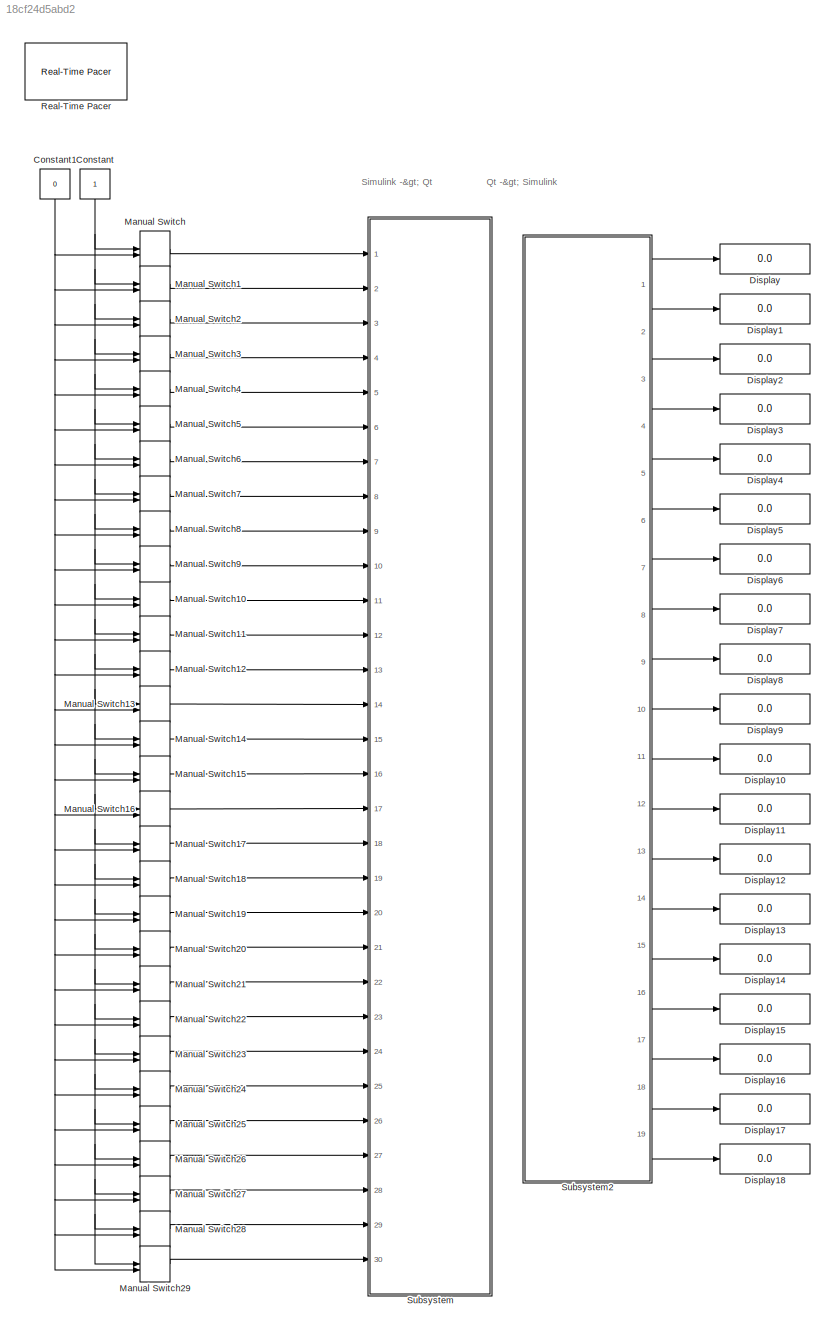
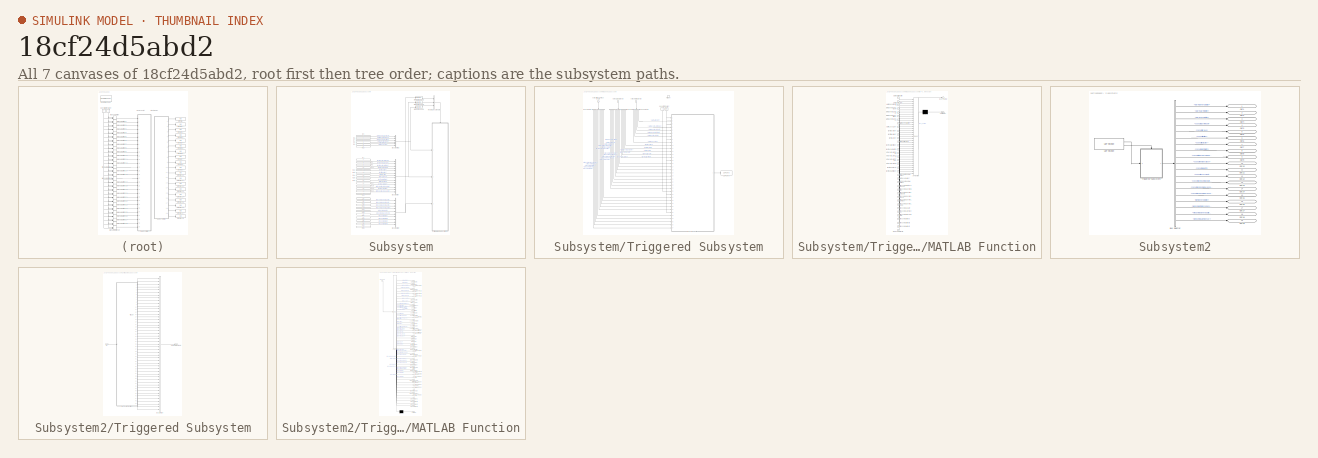
[diagram: thumbnail index - all 7 canvases of the model, root first then tree order]
MODEL slx_18cf24d5abd2
KIND model
CONFIG AbsTol = auto
CONFIG EnableMultiTasking = off
CONFIG FixedStep = auto
CONFIG MaxStep = auto
CONFIG MinStep = auto
CONFIG RelTol = 1e-3
CONFIG SampleTimeConstraint = Unconstrained
CONFIG Solver = VariableStepAuto
CONFIG SolverName = VariableStepAuto
CONFIG StartTime = 0.0
CONFIG StopTime = inf
BLOCK [Constant] Constant
  OutDataTypeStr = boolean
BLOCK [Constant] Constant1
  OutDataTypeStr = boolean
  Value = 0
BLOCK [Display] Display
  Decimation = 1
  Ports = [1]
BLOCK [Display] Display1
  Decimation = 1
  Ports = [1]
BLOCK [Display] Display10
  Decimation = 1
  Ports = [1]
BLOCK [Display] Display11
  Decimation = 1
  Ports = [1]
BLOCK [Display] Display12
  Decimation = 1
  Ports = [1]
BLOCK [Display] Display13
  Decimation = 1
  Ports = [1]
BLOCK [Display] Display14
  Decimation = 1
  Ports = [1]
BLOCK [Display] Display15
  Decimation = 1
  Ports = [1]
BLOCK [Display] Display16
  Decimation = 1
  Ports = [1]
BLOCK [Display] Display17
  Decimation = 1
  Ports = [1]
BLOCK [Display] Display18
  Decimation = 1
  Ports = [1]
BLOCK [Display] Display2
  Decimation = 1
  Ports = [1]
BLOCK [Display] Display3
  Decimation = 1
  Ports = [1]
BLOCK [Display] Display4
  Decimation = 1
  Ports = [1]
BLOCK [Display] Display5
  Decimation = 1
  Ports = [1]
BLOCK [Display] Display6
  Decimation = 1
  Ports = [1]
BLOCK [Display] Display7
  Decimation = 1
  Ports = [1]
BLOCK [Display] Display8
  Decimation = 1
  Ports = [1]
BLOCK [Display] Display9
  Decimation = 1
  Ports = [1]
BLOCK [ManualSwitch] Manual Switch
  CurrentSetting = 0
BLOCK [ManualSwitch] Manual Switch1
  CurrentSetting = 0
BLOCK [ManualSwitch] Manual Switch10
  CurrentSetting = 0
BLOCK [ManualSwitch] Manual Switch11
  CurrentSetting = 0
BLOCK [ManualSwitch] Manual Switch12
  CurrentSetting = 0
BLOCK [ManualSwitch] Manual Switch13
  CurrentSetting = 0
BLOCK [ManualSwitch] Manual Switch14
  CurrentSetting = 0
BLOCK [ManualSwitch] Manual Switch15
  CurrentSetting = 0
BLOCK [ManualSwitch] Manual Switch16
  CurrentSetting = 0
BLOCK [ManualSwitch] Manual Switch17
  CurrentSetting = 0
BLOCK [ManualSwitch] Manual Switch18
  CurrentSetting = 0
BLOCK [ManualSwitch] Manual Switch19
  CurrentSetting = 0
BLOCK [ManualSwitch] Manual Switch2
  CurrentSetting = 0
BLOCK [ManualSwitch] Manual Switch20
  CurrentSetting = 0
BLOCK [ManualSwitch] Manual Switch21
  CurrentSetting = 0
BLOCK [ManualSwitch] Manual Switch22
  CurrentSetting = 0
BLOCK [ManualSwitch] Manual Switch23
  CurrentSetting = 0
BLOCK [ManualSwitch] Manual Switch24
  CurrentSetting = 0
BLOCK [ManualSwitch] Manual Switch25
  CurrentSetting = 0
BLOCK [ManualSwitch] Manual Switch26
  CurrentSetting = 0
BLOCK [ManualSwitch] Manual Switch27
  CurrentSetting = 0
BLOCK [ManualSwitch] Manual Switch28
  CurrentSetting = 0
BLOCK [ManualSwitch] Manual Switch29
  CurrentSetting = 0
BLOCK [ManualSwitch] Manual Switch3
  CurrentSetting = 0
BLOCK [ManualSwitch] Manual Switch4
  CurrentSetting = 0
BLOCK [ManualSwitch] Manual Switch5
  CurrentSetting = 0
BLOCK [ManualSwitch] Manual Switch6
  CurrentSetting = 0
BLOCK [ManualSwitch] Manual Switch7
  CurrentSetting = 0
BLOCK [ManualSwitch] Manual Switch8
  CurrentSetting = 0
BLOCK [ManualSwitch] Manual Switch9
  CurrentSetting = 0
BLOCK [Reference] Real-Time Pacer  REF=realtime_pacer_lib/Real-Time Pacer
  Ports = []
  SourceBlock = realtime_pacer_lib/Real-Time Pacer
  SourceType = RealTime_Pacer
BLOCK [SubSystem] Subsystem
  Ports = [30]
  RequestExecContextInheritance = off
  Variant = off
BLOCK [BusCreator] Subsystem/Bus Creator
  DisplayOption = bar
  InheritFromInputs = on
  Inputs = 14
  Ports = [14, 1]
BLOCK [BusCreator] Subsystem/Bus Creator1
  DisplayOption = bar
  InheritFromInputs = on
  Inputs = 6
  Ports = [6, 1]
BLOCK [BusCreator] Subsystem/Bus Creator2
  DisplayOption = bar
  InheritFromInputs = on
  Inputs = 10
  Ports = [10, 1]
BLOCK [Reference] Subsystem/Detect Change1  REF=simulink/Logic and Bit
Operations/Detect
Change
  Ports = [1, 1]
  SourceBlock = simulink/Logic and Bit\nOperations/Detect\nChange
  SourceProductBaseCode = SL
  SourceProductName = Simulink
  SourceType = Detect Change
BLOCK [Reference] Subsystem/Detect Change2  REF=simulink/Logic and Bit
Operations/Detect
Change
  Ports = [1, 1]
  SourceBlock = simulink/Logic and Bit\nOperations/Detect\nChange
  SourceProductBaseCode = SL
  SourceProductName = Simulink
  SourceType = Detect Change
BLOCK [Reference] Subsystem/Detect Change3  REF=simulink/Logic and Bit
Operations/Detect
Change
  Ports = [1, 1]
  SourceBlock = simulink/Logic and Bit\nOperations/Detect\nChange
  SourceProductBaseCode = SL
  SourceProductName = Simulink
  SourceType = Detect Change
BLOCK [Inport] Subsystem/In1
  IconDisplay = Port number and signal name
  Port = 7
BLOCK [Inport] Subsystem/In10
  IconDisplay = Port number and signal name
  Port = 6
BLOCK [Inport] Subsystem/In11
  IconDisplay = Port number and signal name
  Port = 10
BLOCK [Inport] Subsystem/In12
  IconDisplay = Port number and signal name
  Port = 11
BLOCK [Inport] Subsystem/In13
  IconDisplay = Port number and signal name
  Port = 12
BLOCK [Inport] Subsystem/In14
  IconDisplay = Port number and signal name
  Port = 13
BLOCK [Inport] Subsystem/In15
  IconDisplay = Port number and signal name
  Port = 14
BLOCK [Inport] Subsystem/In16
  IconDisplay = Port number and signal name
  Port = 15
BLOCK [Inport] Subsystem/In17
  IconDisplay = Port number and signal name
  Port = 16
BLOCK [Inport] Subsystem/In18
  IconDisplay = Port number and signal name
  Port = 17
BLOCK [Inport] Subsystem/In19
  IconDisplay = Port number and signal name
  Port = 18
BLOCK [Inport] Subsystem/In2
  IconDisplay = Port number and signal name
  Port = 8
BLOCK [Inport] Subsystem/In20
  IconDisplay = Port number and signal name
  Port = 19
BLOCK [Inport] Subsystem/In21
  IconDisplay = Port number and signal name
  Port = 20
BLOCK [Inport] Subsystem/In22
  IconDisplay = Port number and signal name
  Port = 21
BLOCK [Inport] Subsystem/In23
  IconDisplay = Port number and signal name
  Port = 22
BLOCK [Inport] Subsystem/In24
  IconDisplay = Port number and signal name
  Port = 23
BLOCK [Inport] Subsystem/In25
  IconDisplay = Port number and signal name
  Port = 24
BLOCK [Inport] Subsystem/In26
  IconDisplay = Port number and signal name
  Port = 25
BLOCK [Inport] Subsystem/In27
  IconDisplay = Port number and signal name
  Port = 26
BLOCK [Inport] Subsystem/In28
  IconDisplay = Port number and signal name
  Port = 27
BLOCK [Inport] Subsystem/In29
  IconDisplay = Port number and signal name
  Port = 28
BLOCK [Inport] Subsystem/In3
  IconDisplay = Port number and signal name
  Port = 9
BLOCK [Inport] Subsystem/In30
  IconDisplay = Port number and signal name
  Port = 29
BLOCK [Inport] Subsystem/In31
  IconDisplay = Port number and signal name
  Port = 30
BLOCK [Inport] Subsystem/In4
  IconDisplay = Port number and signal name
BLOCK [Inport] Subsystem/In5
  IconDisplay = Port number and signal name
  Port = 2
BLOCK [Inport] Subsystem/In7
  IconDisplay = Port number and signal name
  Port = 3
BLOCK [Inport] Subsystem/In8
  IconDisplay = Port number and signal name
  Port = 4
BLOCK [Inport] Subsystem/In9
  IconDisplay = Port number and signal name
  Port = 5
BLOCK [SubSystem] Subsystem/Triggered Subsystem
  Ports = [3, 0, 0, 1]
  RequestExecContextInheritance = off
  TreatAsAtomicUnit = on
  Variant = off
BLOCK [BusSelector] Subsystem/Triggered Subsystem/Bus Selector
  OutputAsBus = off
  OutputSignals = lightUpperBeamHeadlight,lightReverselight,lightLowerBeamHeadlight,lightIndicatorRight,lightIndicatorLeft,lightGenericLightUp,lightGenericLightRight,lightGenericLightLeft,lightGenericLightDown,lightFoglightRight,lightFoglightLeft,lightDaylight,lightBrakelight,lightBacklight
  Ports = [1, 14]
BLOCK [BusSelector] Subsystem/Triggered Subsystem/Bus Selector1
  OutputAsBus = off
  OutputSignals = alarmLockLight,alarmGenericLightUp,alarmGenericLightRight,alarmGenericLightLeft,alarmGenericLightDown,alarmAlarmLight
  Ports = [1, 6]
BLOCK [BusSelector] Subsystem/Triggered Subsystem/Bus Selector2
  OutputAsBus = off
  OutputSignals = windshieldWiperD,windshieldWiperC,windshieldWiperB,windshieldWiperA,windshieldWasherPump,windshieldHeater,windshieldGenericLightUp,windshieldGenericLightRight,windshieldGenericLightLeft,windshieldGenericLightDown
  Ports = [1, 10]
BLOCK [Constant] Subsystem/Triggered Subsystem/Constant
  OutDataTypeStr = boolean
  Value = false
BLOCK [Constant] Subsystem/Triggered Subsystem/Constant1
  Value = 0
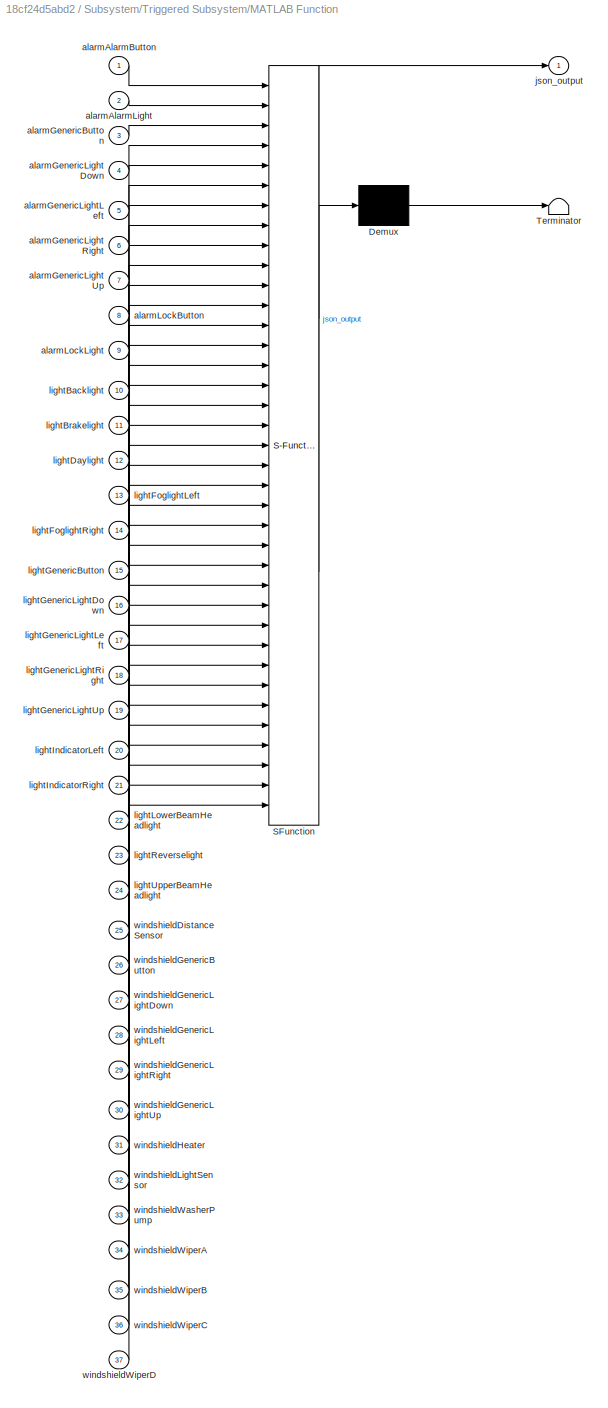
BLOCK [SubSystem] Subsystem/Triggered Subsystem/MATLAB Function
  ErrorFcn = Stateflow.Translate.translate
  PermitHierarchicalResolution = ExplicitOnly
  Ports = [37, 1]
  RequestExecContextInheritance = off
  SFBlockType = MATLAB Function
  TreatAsAtomicUnit = on
  Variant = off
BLOCK [Demux] Subsystem/Triggered Subsystem/MATLAB Function/ Demux 
  Outputs = 1
  Ports = [1, 1]
BLOCK [S-Function] Subsystem/Triggered Subsystem/MATLAB Function/ SFunction 
  EnableBusSupport = on
  FunctionName = sf_sfun
  PortCounts = [37 2]
  Ports = [37, 2]
  SFcnIsStateOwnerBlock = off
  SFunctionDeploymentMode = off
  Tag = Stateflow S-Function Test 2
BLOCK [Terminator] Subsystem/Triggered Subsystem/MATLAB Function/ Terminator 
BLOCK [Inport] Subsystem/Triggered Subsystem/MATLAB Function/alarmAlarmButton
  IconDisplay = Port number
BLOCK [Inport] Subsystem/Triggered Subsystem/MATLAB Function/alarmAlarmLight
  IconDisplay = Port number
  Port = 2
BLOCK [Inport] Subsystem/Triggered Subsystem/MATLAB Function/alarmGenericButton
  IconDisplay = Port number
  Port = 3
BLOCK [Inport] Subsystem/Triggered Subsystem/MATLAB Function/alarmGenericLightDown
  IconDisplay = Port number
  Port = 4
BLOCK [Inport] Subsystem/Triggered Subsystem/MATLAB Function/alarmGenericLightLeft
  IconDisplay = Port number
  Port = 5
BLOCK [Inport] Subsystem/Triggered Subsystem/MATLAB Function/alarmGenericLightRight
  IconDisplay = Port number
  Port = 6
BLOCK [Inport] Subsystem/Triggered Subsystem/MATLAB Function/alarmGenericLightUp
  IconDisplay = Port number
  Port = 7
BLOCK [Inport] Subsystem/Triggered Subsystem/MATLAB Function/alarmLockButton
  IconDisplay = Port number
  Port = 8
BLOCK [Inport] Subsystem/Triggered Subsystem/MATLAB Function/alarmLockLight
  IconDisplay = Port number
  Port = 9
BLOCK [Outport] Subsystem/Triggered Subsystem/MATLAB Function/json_output
  IconDisplay = Port number
BLOCK [Inport] Subsystem/Triggered Subsystem/MATLAB Function/lightBacklight
  IconDisplay = Port number
  Port = 10
BLOCK [Inport] Subsystem/Triggered Subsystem/MATLAB Function/lightBrakelight
  IconDisplay = Port number
  Port = 11
BLOCK [Inport] Subsystem/Triggered Subsystem/MATLAB Function/lightDaylight
  IconDisplay = Port number
  Port = 12
BLOCK [Inport] Subsystem/Triggered Subsystem/MATLAB Function/lightFoglightLeft
  IconDisplay = Port number
  Port = 13
BLOCK [Inport] Subsystem/Triggered Subsystem/MATLAB Function/lightFoglightRight
  IconDisplay = Port number
  Port = 14
BLOCK [Inport] Subsystem/Triggered Subsystem/MATLAB Function/lightGenericButton
  IconDisplay = Port number
  Port = 15
BLOCK [Inport] Subsystem/Triggered Subsystem/MATLAB Function/lightGenericLightDown
  IconDisplay = Port number
  Port = 16
BLOCK [Inport] Subsystem/Triggered Subsystem/MATLAB Function/lightGenericLightLeft
  IconDisplay = Port number
  Port = 17
BLOCK [Inport] Subsystem/Triggered Subsystem/MATLAB Function/lightGenericLightRight
  IconDisplay = Port number
  Port = 18
BLOCK [Inport] Subsystem/Triggered Subsystem/MATLAB Function/lightGenericLightUp
  IconDisplay = Port number
  Port = 19
BLOCK [Inport] Subsystem/Triggered Subsystem/MATLAB Function/lightIndicatorLeft
  IconDisplay = Port number
  Port = 20
BLOCK [Inport] Subsystem/Triggered Subsystem/MATLAB Function/lightIndicatorRight
  IconDisplay = Port number
  Port = 21
BLOCK [Inport] Subsystem/Triggered Subsystem/MATLAB Function/lightLowerBeamHeadlight
  IconDisplay = Port number
  Port = 22
BLOCK [Inport] Subsystem/Triggered Subsystem/MATLAB Function/lightReverselight
  IconDisplay = Port number
  Port = 23
BLOCK [Inport] Subsystem/Triggered Subsystem/MATLAB Function/lightUpperBeamHeadlight
  IconDisplay = Port number
  Port = 24
BLOCK [Inport] Subsystem/Triggered Subsystem/MATLAB Function/windshieldDistanceSensor
  IconDisplay = Port number
  Port = 25
BLOCK [Inport] Subsystem/Triggered Subsystem/MATLAB Function/windshieldGenericButton
  IconDisplay = Port number
  Port = 26
BLOCK [Inport] Subsystem/Triggered Subsystem/MATLAB Function/windshieldGenericLightDown
  IconDisplay = Port number
  Port = 27
BLOCK [Inport] Subsystem/Triggered Subsystem/MATLAB Function/windshieldGenericLightLeft
  IconDisplay = Port number
  Port = 28
BLOCK [Inport] Subsystem/Triggered Subsystem/MATLAB Function/windshieldGenericLightRight
  IconDisplay = Port number
  Port = 29
BLOCK [Inport] Subsystem/Triggered Subsystem/MATLAB Function/windshieldGenericLightUp
  IconDisplay = Port number
  Port = 30
BLOCK [Inport] Subsystem/Triggered Subsystem/MATLAB Function/windshieldHeater
  IconDisplay = Port number
  Port = 31
BLOCK [Inport] Subsystem/Triggered Subsystem/MATLAB Function/windshieldLightSensor
  IconDisplay = Port number
  Port = 32
BLOCK [Inport] Subsystem/Triggered Subsystem/MATLAB Function/windshieldWasherPump
  IconDisplay = Port number
  Port = 33
BLOCK [Inport] Subsystem/Triggered Subsystem/MATLAB Function/windshieldWiperA
  IconDisplay = Port number
  Port = 34
BLOCK [Inport] Subsystem/Triggered Subsystem/MATLAB Function/windshieldWiperB
  IconDisplay = Port number
  Port = 35
BLOCK [Inport] Subsystem/Triggered Subsystem/MATLAB Function/windshieldWiperC
  IconDisplay = Port number
  Port = 36
BLOCK [Inport] Subsystem/Triggered Subsystem/MATLAB Function/windshieldWiperD
  IconDisplay = Port number
  Port = 37
BLOCK [TriggerPort] Subsystem/Triggered Subsystem/Trigger
  Ports = []
  StatesWhenEnabling = held
  VariantControl = Variant
BLOCK [Reference] Subsystem/Triggered Subsystem/UDP Send  REF=instrumentlib/UDP Send
  Ports = [1]
  SourceBlock = instrumentlib/UDP Send
  SourceProductBaseCode = IC
  SourceProductName = Instrument Control Toolbox
  SourceType = UDP Send
BLOCK [Inport] Subsystem/Triggered Subsystem/outputAlarmSignals
  IconDisplay = Port number
BLOCK [Inport] Subsystem/Triggered Subsystem/outputLightSignals 
  IconDisplay = Port number
  OutDataTypeStr = boolean
  Port = 2
BLOCK [Inport] Subsystem/Triggered Subsystem/outputWindshieldSignals
  IconDisplay = Port number
  OutDataTypeStr = boolean
  Port = 3
BLOCK [Concatenate] Subsystem/Vector Concatenate
  NumInputs = 3
  Ports = [3, 1]
BLOCK [SubSystem] Subsystem2
  Ports = [0, 19]
  RequestExecContextInheritance = off
  Variant = off
BLOCK [BusSelector] Subsystem2/Bus Selector
  OutputAsBus = off
  OutputSignals = alarmGenericButton,alarmAlarmButton,alarmLockButton,cockpitAlarmReset,cockpitBrake,cockpitIgnition,cockpitIndicator,cockpitLightSwitch,cockpitSteeringAngleDeg,cockpitTemperature,cockpitVelocity,cockpitWarnLight,cockpitWindshieldHeater,cockpitWindshieldWasherMode,cockpitWindshieldWasherPump,lightGenericButton,windshieldDistanceSensor,windshieldGenericButton,windshieldLightSensor
  Ports = [1, 19]
BLOCK [Outport] Subsystem2/Out1
  IconDisplay = Port number and signal name
BLOCK [Outport] Subsystem2/Out10
  IconDisplay = Port number and signal name
  Port = 10
BLOCK [Outport] Subsystem2/Out11
  IconDisplay = Port number and signal name
  Port = 11
BLOCK [Outport] Subsystem2/Out12
  IconDisplay = Port number and signal name
  Port = 12
BLOCK [Outport] Subsystem2/Out13
  IconDisplay = Port number and signal name
  Port = 13
BLOCK [Outport] Subsystem2/Out14
  IconDisplay = Port number and signal name
  Port = 14
BLOCK [Outport] Subsystem2/Out15
  IconDisplay = Port number and signal name
  Port = 15
BLOCK [Outport] Subsystem2/Out16
  IconDisplay = Port number and signal name
  Port = 16
BLOCK [Outport] Subsystem2/Out17
  IconDisplay = Port number and signal name
  Port = 17
BLOCK [Outport] Subsystem2/Out18
  IconDisplay = Port number and signal name
  Port = 18
BLOCK [Outport] Subsystem2/Out19
  IconDisplay = Port number and signal name
  Port = 19
BLOCK [Outport] Subsystem2/Out2
  IconDisplay = Port number and signal name
  Port = 2
BLOCK [Outport] Subsystem2/Out3
  IconDisplay = Port number and signal name
  Port = 4
BLOCK [Outport] Subsystem2/Out4
  IconDisplay = Port number and signal name
  Port = 3
BLOCK [Outport] Subsystem2/Out5
  IconDisplay = Port number and signal name
  Port = 5
BLOCK [Outport] Subsystem2/Out6
  IconDisplay = Port number and signal name
  Port = 6
BLOCK [Outport] Subsystem2/Out7
  IconDisplay = Port number and signal name
  Port = 7
BLOCK [Outport] Subsystem2/Out8
  IconDisplay = Port number and signal name
  Port = 8
BLOCK [Outport] Subsystem2/Out9
  IconDisplay = Port number and signal name
  Port = 9
BLOCK [SubSystem] Subsystem2/Triggered Subsystem
  Ports = [1, 1, 0, 1]
  RequestExecContextInheritance = off
  TreatAsAtomicUnit = on
  Variant = off
BLOCK [BusCreator] Subsystem2/Triggered Subsystem/Bus Creator
  DisplayOption = bar
  InheritFromInputs = on
  Inputs = 49
  Ports = [49, 1]
BLOCK [Inport] Subsystem2/Triggered Subsystem/In1
  IconDisplay = Port number
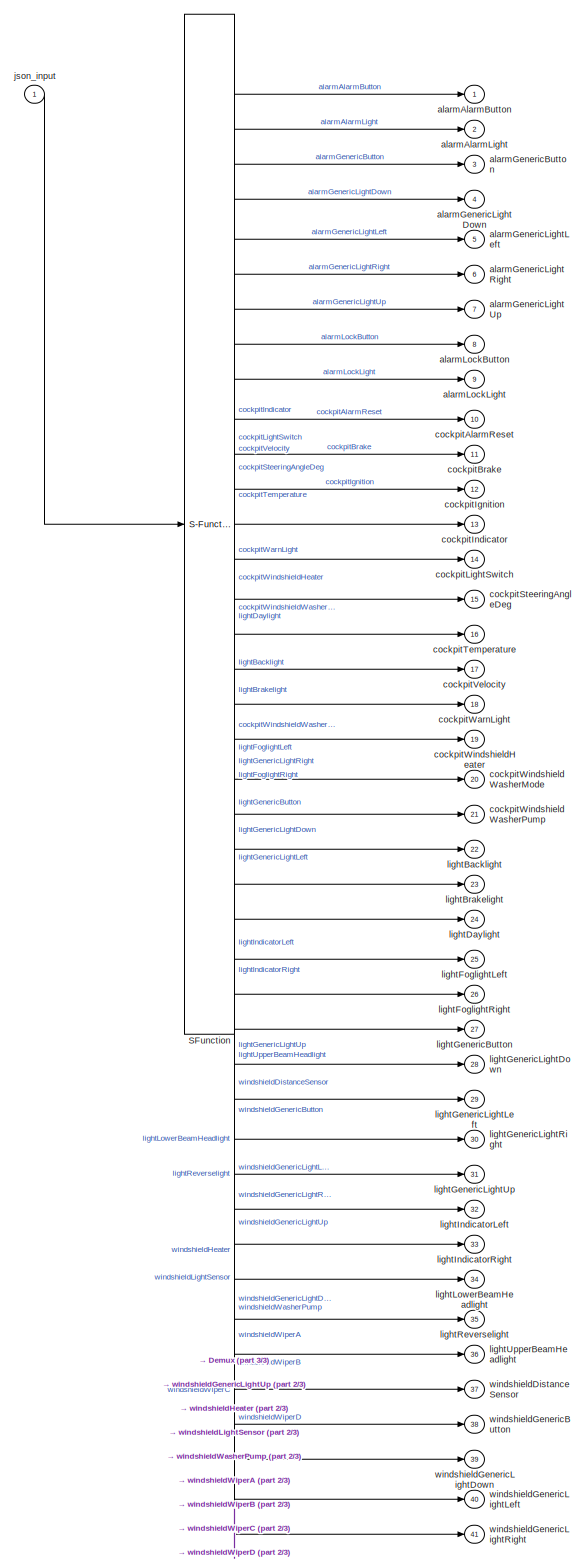
[diagram: Subsystem2/Triggered Subsystem/MATLAB Function - part 1/3, most of the canvas]
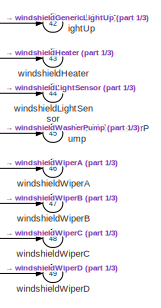
[diagram: Subsystem2/Triggered Subsystem/MATLAB Function - part 2/3, bottom right region]
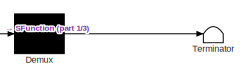
[diagram: Subsystem2/Triggered Subsystem/MATLAB Function - part 3/3, bottom center region]
BLOCK [SubSystem] Subsystem2/Triggered Subsystem/MATLAB Function
  ErrorFcn = Stateflow.Translate.translate
  PermitHierarchicalResolution = ExplicitOnly
  Ports = [1, 49]
  RequestExecContextInheritance = off
  SFBlockType = MATLAB Function
  TreatAsAtomicUnit = on
  Variant = off
BLOCK [Demux] Subsystem2/Triggered Subsystem/MATLAB Function/ Demux 
  Outputs = 1
  Ports = [1, 1]
BLOCK [S-Function] Subsystem2/Triggered Subsystem/MATLAB Function/ SFunction 
  EnableBusSupport = on
  FunctionName = sf_sfun
  PortCounts = [1 50]
  Ports = [1, 50]
  SFcnIsStateOwnerBlock = off
  SFunctionDeploymentMode = off
  Tag = Stateflow S-Function Test 8
BLOCK [Terminator] Subsystem2/Triggered Subsystem/MATLAB Function/ Terminator 
BLOCK [Outport] Subsystem2/Triggered Subsystem/MATLAB Function/alarmAlarmButton
  IconDisplay = Port number
BLOCK [Outport] Subsystem2/Triggered Subsystem/MATLAB Function/alarmAlarmLight
  IconDisplay = Port number
  Port = 2
BLOCK [Outport] Subsystem2/Triggered Subsystem/MATLAB Function/alarmGenericButton
  IconDisplay = Port number
  Port = 3
BLOCK [Outport] Subsystem2/Triggered Subsystem/MATLAB Function/alarmGenericLightDown
  IconDisplay = Port number
  Port = 4
BLOCK [Outport] Subsystem2/Triggered Subsystem/MATLAB Function/alarmGenericLightLeft
  IconDisplay = Port number
  Port = 5
BLOCK [Outport] Subsystem2/Triggered Subsystem/MATLAB Function/alarmGenericLightRight
  IconDisplay = Port number
  Port = 6
BLOCK [Outport] Subsystem2/Triggered Subsystem/MATLAB Function/alarmGenericLightUp
  IconDisplay = Port number
  Port = 7
BLOCK [Outport] Subsystem2/Triggered Subsystem/MATLAB Function/alarmLockButton
  IconDisplay = Port number
  Port = 8
BLOCK [Outport] Subsystem2/Triggered Subsystem/MATLAB Function/alarmLockLight
  IconDisplay = Port number
  Port = 9
BLOCK [Outport] Subsystem2/Triggered Subsystem/MATLAB Function/cockpitAlarmReset
  IconDisplay = Port number
  Port = 10
BLOCK [Outport] Subsystem2/Triggered Subsystem/MATLAB Function/cockpitBrake
  IconDisplay = Port number
  Port = 11
BLOCK [Outport] Subsystem2/Triggered Subsystem/MATLAB Function/cockpitIgnition
  IconDisplay = Port number
  Port = 12
BLOCK [Outport] Subsystem2/Triggered Subsystem/MATLAB Function/cockpitIndicator
  IconDisplay = Port number
  Port = 13
BLOCK [Outport] Subsystem2/Triggered Subsystem/MATLAB Function/cockpitLightSwitch
  IconDisplay = Port number
  Port = 14
BLOCK [Outport] Subsystem2/Triggered Subsystem/MATLAB Function/cockpitSteeringAngleDeg
  IconDisplay = Port number
  Port = 15
BLOCK [Outport] Subsystem2/Triggered Subsystem/MATLAB Function/cockpitTemperature
  IconDisplay = Port number
  Port = 16
BLOCK [Outport] Subsystem2/Triggered Subsystem/MATLAB Function/cockpitVelocity
  IconDisplay = Port number
  Port = 17
BLOCK [Outport] Subsystem2/Triggered Subsystem/MATLAB Function/cockpitWarnLight
  IconDisplay = Port number
  Port = 18
BLOCK [Outport] Subsystem2/Triggered Subsystem/MATLAB Function/cockpitWindshieldHeater
  IconDisplay = Port number
  Port = 19
BLOCK [Outport] Subsystem2/Triggered Subsystem/MATLAB Function/cockpitWindshieldWasherMode
  IconDisplay = Port number
  Port = 20
BLOCK [Outport] Subsystem2/Triggered Subsystem/MATLAB Function/cockpitWindshieldWasherPump
  IconDisplay = Port number
  Port = 21
BLOCK [Inport] Subsystem2/Triggered Subsystem/MATLAB Function/json_input
  IconDisplay = Port number
BLOCK [Outport] Subsystem2/Triggered Subsystem/MATLAB Function/lightBacklight
  IconDisplay = Port number
  Port = 22
BLOCK [Outport] Subsystem2/Triggered Subsystem/MATLAB Function/lightBrakelight
  IconDisplay = Port number
  Port = 23
BLOCK [Outport] Subsystem2/Triggered Subsystem/MATLAB Function/lightDaylight
  IconDisplay = Port number
  Port = 24
BLOCK [Outport] Subsystem2/Triggered Subsystem/MATLAB Function/lightFoglightLeft
  IconDisplay = Port number
  Port = 25
BLOCK [Outport] Subsystem2/Triggered Subsystem/MATLAB Function/lightFoglightRight
  IconDisplay = Port number
  Port = 26
BLOCK [Outport] Subsystem2/Triggered Subsystem/MATLAB Function/lightGenericButton
  IconDisplay = Port number
  Port = 27
BLOCK [Outport] Subsystem2/Triggered Subsystem/MATLAB Function/lightGenericLightDown
  IconDisplay = Port number
  Port = 28
BLOCK [Outport] Subsystem2/Triggered Subsystem/MATLAB Function/lightGenericLightLeft
  IconDisplay = Port number
  Port = 29
BLOCK [Outport] Subsystem2/Triggered Subsystem/MATLAB Function/lightGenericLightRight
  IconDisplay = Port number
  Port = 30
BLOCK [Outport] Subsystem2/Triggered Subsystem/MATLAB Function/lightGenericLightUp
  IconDisplay = Port number
  Port = 31
BLOCK [Outport] Subsystem2/Triggered Subsystem/MATLAB Function/lightIndicatorLeft
  IconDisplay = Port number
  Port = 32
BLOCK [Outport] Subsystem2/Triggered Subsystem/MATLAB Function/lightIndicatorRight
  IconDisplay = Port number
  Port = 33
BLOCK [Outport] Subsystem2/Triggered Subsystem/MATLAB Function/lightLowerBeamHeadlight
  IconDisplay = Port number
  Port = 34
BLOCK [Outport] Subsystem2/Triggered Subsystem/MATLAB Function/lightReverselight
  IconDisplay = Port number
  Port = 35
BLOCK [Outport] Subsystem2/Triggered Subsystem/MATLAB Function/lightUpperBeamHeadlight
  IconDisplay = Port number
  Port = 36
BLOCK [Outport] Subsystem2/Triggered Subsystem/MATLAB Function/windshieldDistanceSensor
  IconDisplay = Port number
  Port = 37
BLOCK [Outport] Subsystem2/Triggered Subsystem/MATLAB Function/windshieldGenericButton
  IconDisplay = Port number
  Port = 38
BLOCK [Outport] Subsystem2/Triggered Subsystem/MATLAB Function/windshieldGenericLightDown
  IconDisplay = Port number
  Port = 39
BLOCK [Outport] Subsystem2/Triggered Subsystem/MATLAB Function/windshieldGenericLightLeft
  IconDisplay = Port number
  Port = 40
BLOCK [Outport] Subsystem2/Triggered Subsystem/MATLAB Function/windshieldGenericLightRight
  IconDisplay = Port number
  Port = 41
BLOCK [Outport] Subsystem2/Triggered Subsystem/MATLAB Function/windshieldGenericLightUp
  IconDisplay = Port number
  Port = 42
BLOCK [Outport] Subsystem2/Triggered Subsystem/MATLAB Function/windshieldHeater
  IconDisplay = Port number
  Port = 43
BLOCK [Outport] Subsystem2/Triggered Subsystem/MATLAB Function/windshieldLightSensor
  IconDisplay = Port number
  Port = 44
BLOCK [Outport] Subsystem2/Triggered Subsystem/MATLAB Function/windshieldWasherPump
  IconDisplay = Port number
  Port = 45
BLOCK [Outport] Subsystem2/Triggered Subsystem/MATLAB Function/windshieldWiperA
  IconDisplay = Port number
  Port = 46
BLOCK [Outport] Subsystem2/Triggered Subsystem/MATLAB Function/windshieldWiperB
  IconDisplay = Port number
  Port = 47
BLOCK [Outport] Subsystem2/Triggered Subsystem/MATLAB Function/windshieldWiperC
  IconDisplay = Port number
  Port = 48
BLOCK [Outport] Subsystem2/Triggered Subsystem/MATLAB Function/windshieldWiperD
  IconDisplay = Port number
  Port = 49
BLOCK [TriggerPort] Subsystem2/Triggered Subsystem/Trigger
  Ports = []
  StatesWhenEnabling = held
  VariantControl = Variant
BLOCK [Outport] Subsystem2/Triggered Subsystem/outputAlarmSignals
  IconDisplay = Port number
BLOCK [Reference] Subsystem2/UDP Receive  REF=instrumentlib/UDP Receive
  Ports = [0, 2]
  SourceBlock = instrumentlib/UDP Receive
  SourceProductBaseCode = IC
  SourceProductName = Instrument Control Toolbox
  SourceType = UDP Receive
ANNOTATION (root): Qt -> Simulink
ANNOTATION (root): Simulink -> Qt
NET Constant1:1 -> Manual Switch10:2, Manual Switch11:2, Manual Switch12:2, Manual Switch13:2, Manual Switch14:2, Manual Switch15:2, Manual Switch16:2, Manual Switch17:2, Manual Switch18:2, Manual Switch19:2, Manual Switch1:2, Manual Switch20:2, Manual Switch21:2, Manual Switch22:2, Manual Switch23:2, Manual Switch24:2, Manual Switch25:2, Manual Switch26:2, Manual Switch27:2, Manual Switch28:2, Manual Switch29:2, Manual Switch2:2, Manual Switch3:2, Manual Switch4:2, Manual Switch5:2, Manual Switch6:2, Manual Switch7:2, Manual Switch8:2, Manual Switch9:2, Manual Switch:2
NET Constant:1 -> Manual Switch10:1, Manual Switch11:1, Manual Switch12:1, Manual Switch13:1, Manual Switch14:1, Manual Switch15:1, Manual Switch16:1, Manual Switch17:1, Manual Switch18:1, Manual Switch19:1, Manual Switch1:1, Manual Switch20:1, Manual Switch21:1, Manual Switch22:1, Manual Switch23:1, Manual Switch24:1, Manual Switch25:1, Manual Switch26:1, Manual Switch27:1, Manual Switch28:1, Manual Switch29:1, Manual Switch2:1, Manual Switch3:1, Manual Switch4:1, Manual Switch5:1, Manual Switch6:1, Manual Switch7:1, Manual Switch8:1, Manual Switch9:1, Manual Switch:1
LINE Manual Switch10:1 -> Subsystem:11
LINE Manual Switch11:1 -> Subsystem:12
LINE Manual Switch12:1 -> Subsystem:13
LINE Manual Switch13:1 -> Subsystem:14
LINE Manual Switch14:1 -> Subsystem:15
LINE Manual Switch15:1 -> Subsystem:16
LINE Manual Switch16:1 -> Subsystem:17
LINE Manual Switch17:1 -> Subsystem:18
LINE Manual Switch18:1 -> Subsystem:19
LINE Manual Switch19:1 -> Subsystem:20
LINE Manual Switch1:1 -> Subsystem:2
LINE Manual Switch20:1 -> Subsystem:21
LINE Manual Switch21:1 -> Subsystem:22
LINE Manual Switch22:1 -> Subsystem:23
LINE Manual Switch23:1 -> Subsystem:24
LINE Manual Switch24:1 -> Subsystem:25
LINE Manual Switch25:1 -> Subsystem:26
LINE Manual Switch26:1 -> Subsystem:27
LINE Manual Switch27:1 -> Subsystem:28
LINE Manual Switch28:1 -> Subsystem:29
LINE Manual Switch29:1 -> Subsystem:30
LINE Manual Switch2:1 -> Subsystem:3
LINE Manual Switch3:1 -> Subsystem:4
LINE Manual Switch4:1 -> Subsystem:5
LINE Manual Switch5:1 -> Subsystem:6
LINE Manual Switch6:1 -> Subsystem:7
LINE Manual Switch7:1 -> Subsystem:8
LINE Manual Switch8:1 -> Subsystem:9
LINE Manual Switch9:1 -> Subsystem:10
LINE Manual Switch:1 -> Subsystem:1
NET Subsystem/Bus Creator1:1 -> Subsystem/Detect Change1:1, Subsystem/Triggered Subsystem:1
NET Subsystem/Bus Creator2:1 -> Subsystem/Detect Change2:1, Subsystem/Triggered Subsystem:3
NET Subsystem/Bus Creator:1 -> Subsystem/Detect Change3:1, Subsystem/Triggered Subsystem:2
LINE Subsystem/Detect Change1:1 -> Subsystem/Vector Concatenate:3
LINE Subsystem/Detect Change2:1 -> Subsystem/Vector Concatenate:1
LINE Subsystem/Detect Change3:1 -> Subsystem/Vector Concatenate:2
LINE Subsystem/In10:1 -> Subsystem/Bus Creator1:6
LINE Subsystem/In11:1 -> Subsystem/Bus Creator:4
LINE Subsystem/In12:1 -> Subsystem/Bus Creator:5
LINE Subsystem/In13:1 -> Subsystem/Bus Creator:6
LINE Subsystem/In14:1 -> Subsystem/Bus Creator:7
LINE Subsystem/In15:1 -> Subsystem/Bus Creator:8
LINE Subsystem/In16:1 -> Subsystem/Bus Creator:9
LINE Subsystem/In17:1 -> Subsystem/Bus Creator:10
LINE Subsystem/In18:1 -> Subsystem/Bus Creator:11
LINE Subsystem/In19:1 -> Subsystem/Bus Creator:12
LINE Subsystem/In1:1 -> Subsystem/Bus Creator:1
LINE Subsystem/In20:1 -> Subsystem/Bus Creator:13
LINE Subsystem/In21:1 -> Subsystem/Bus Creator:14
LINE Subsystem/In22:1 -> Subsystem/Bus Creator2:1
LINE Subsystem/In23:1 -> Subsystem/Bus Creator2:2
LINE Subsystem/In24:1 -> Subsystem/Bus Creator2:3
LINE Subsystem/In25:1 -> Subsystem/Bus Creator2:4
LINE Subsystem/In26:1 -> Subsystem/Bus Creator2:5
LINE Subsystem/In27:1 -> Subsystem/Bus Creator2:6
LINE Subsystem/In28:1 -> Subsystem/Bus Creator2:7
LINE Subsystem/In29:1 -> Subsystem/Bus Creator2:8
LINE Subsystem/In2:1 -> Subsystem/Bus Creator:2
LINE Subsystem/In30:1 -> Subsystem/Bus Creator2:9
LINE Subsystem/In31:1 -> Subsystem/Bus Creator2:10
LINE Subsystem/In3:1 -> Subsystem/Bus Creator:3
LINE Subsystem/In4:1 -> Subsystem/Bus Creator1:1
LINE Subsystem/In5:1 -> Subsystem/Bus Creator1:2
LINE Subsystem/In7:1 -> Subsystem/Bus Creator1:3
LINE Subsystem/In8:1 -> Subsystem/Bus Creator1:4
LINE Subsystem/In9:1 -> Subsystem/Bus Creator1:5
LINE Subsystem/Triggered Subsystem/Bus Selector1:1 -> Subsystem/Triggered Subsystem/MATLAB Function:9
LINE Subsystem/Triggered Subsystem/Bus Selector1:2 -> Subsystem/Triggered Subsystem/MATLAB Function:7
LINE Subsystem/Triggered Subsystem/Bus Selector1:3 -> Subsystem/Triggered Subsystem/MATLAB Function:6
LINE Subsystem/Triggered Subsystem/Bus Selector1:4 -> Subsystem/Triggered Subsystem/MATLAB Function:5
LINE Subsystem/Triggered Subsystem/Bus Selector1:5 -> Subsystem/Triggered Subsystem/MATLAB Function:4
LINE Subsystem/Triggered Subsystem/Bus Selector1:6 -> Subsystem/Triggered Subsystem/MATLAB Function:2
LINE Subsystem/Triggered Subsystem/Bus Selector2:1 -> Subsystem/Triggered Subsystem/MATLAB Function:37
LINE Subsystem/Triggered Subsystem/Bus Selector2:10 -> Subsystem/Triggered Subsystem/MATLAB Function:27
LINE Subsystem/Triggered Subsystem/Bus Selector2:2 -> Subsystem/Triggered Subsystem/MATLAB Function:36
LINE Subsystem/Triggered Subsystem/Bus Selector2:3 -> Subsystem/Triggered Subsystem/MATLAB Function:35
LINE Subsystem/Triggered Subsystem/Bus Selector2:4 -> Subsystem/Triggered Subsystem/MATLAB Function:34
LINE Subsystem/Triggered Subsystem/Bus Selector2:5 -> Subsystem/Triggered Subsystem/MATLAB Function:33
LINE Subsystem/Triggered Subsystem/Bus Selector2:6 -> Subsystem/Triggered Subsystem/MATLAB Function:31
LINE Subsystem/Triggered Subsystem/Bus Selector2:7 -> Subsystem/Triggered Subsystem/MATLAB Function:30
LINE Subsystem/Triggered Subsystem/Bus Selector2:8 -> Subsystem/Triggered Subsystem/MATLAB Function:29
LINE Subsystem/Triggered Subsystem/Bus Selector2:9 -> Subsystem/Triggered Subsystem/MATLAB Function:28
LINE Subsystem/Triggered Subsystem/Bus Selector:1 -> Subsystem/Triggered Subsystem/MATLAB Function:24
LINE Subsystem/Triggered Subsystem/Bus Selector:10 -> Subsystem/Triggered Subsystem/MATLAB Function:14
LINE Subsystem/Triggered Subsystem/Bus Selector:11 -> Subsystem/Triggered Subsystem/MATLAB Function:13
LINE Subsystem/Triggered Subsystem/Bus Selector:12 -> Subsystem/Triggered Subsystem/MATLAB Function:12
LINE Subsystem/Triggered Subsystem/Bus Selector:13 -> Subsystem/Triggered Subsystem/MATLAB Function:11
LINE Subsystem/Triggered Subsystem/Bus Selector:14 -> Subsystem/Triggered Subsystem/MATLAB Function:10
LINE Subsystem/Triggered Subsystem/Bus Selector:2 -> Subsystem/Triggered Subsystem/MATLAB Function:23
LINE Subsystem/Triggered Subsystem/Bus Selector:3 -> Subsystem/Triggered Subsystem/MATLAB Function:22
LINE Subsystem/Triggered Subsystem/Bus Selector:4 -> Subsystem/Triggered Subsystem/MATLAB Function:21
LINE Subsystem/Triggered Subsystem/Bus Selector:5 -> Subsystem/Triggered Subsystem/MATLAB Function:20
LINE Subsystem/Triggered Subsystem/Bus Selector:6 -> Subsystem/Triggered Subsystem/MATLAB Function:19
LINE Subsystem/Triggered Subsystem/Bus Selector:7 -> Subsystem/Triggered Subsystem/MATLAB Function:18
LINE Subsystem/Triggered Subsystem/Bus Selector:8 -> Subsystem/Triggered Subsystem/MATLAB Function:17
LINE Subsystem/Triggered Subsystem/Bus Selector:9 -> Subsystem/Triggered Subsystem/MATLAB Function:16
LINE Subsystem/Triggered Subsystem/Constant1:1 -> Subsystem/Triggered Subsystem/MATLAB Function:25
NET Subsystem/Triggered Subsystem/Constant:1 -> Subsystem/Triggered Subsystem/MATLAB Function:1, Subsystem/Triggered Subsystem/MATLAB Function:15, Subsystem/Triggered Subsystem/MATLAB Function:26, Subsystem/Triggered Subsystem/MATLAB Function:3, Subsystem/Triggered Subsystem/MATLAB Function:32, Subsystem/Triggered Subsystem/MATLAB Function:8
LINE Subsystem/Triggered Subsystem/MATLAB Function:1 -> Subsystem/Triggered Subsystem/UDP Send:1
LINE Subsystem/Triggered Subsystem/outputAlarmSignals:1 -> Subsystem/Triggered Subsystem/Bus Selector1:1
LINE Subsystem/Triggered Subsystem/outputLightSignals :1 -> Subsystem/Triggered Subsystem/Bus Selector:1
LINE Subsystem/Triggered Subsystem/outputWindshieldSignals:1 -> Subsystem/Triggered Subsystem/Bus Selector2:1
LINE Subsystem/Vector Concatenate:1 -> Subsystem/Triggered Subsystem:trigger
LINE Subsystem2/Bus Selector:1 -> Subsystem2/Out1:1
LINE Subsystem2/Bus Selector:10 -> Subsystem2/Out10:1
LINE Subsystem2/Bus Selector:11 -> Subsystem2/Out11:1
LINE Subsystem2/Bus Selector:12 -> Subsystem2/Out12:1
LINE Subsystem2/Bus Selector:13 -> Subsystem2/Out13:1
LINE Subsystem2/Bus Selector:14 -> Subsystem2/Out14:1
LINE Subsystem2/Bus Selector:15 -> Subsystem2/Out15:1
LINE Subsystem2/Bus Selector:16 -> Subsystem2/Out16:1
LINE Subsystem2/Bus Selector:17 -> Subsystem2/Out17:1
LINE Subsystem2/Bus Selector:18 -> Subsystem2/Out18:1
LINE Subsystem2/Bus Selector:19 -> Subsystem2/Out19:1
LINE Subsystem2/Bus Selector:2 -> Subsystem2/Out2:1
LINE Subsystem2/Bus Selector:3 -> Subsystem2/Out4:1
LINE Subsystem2/Bus Selector:4 -> Subsystem2/Out3:1
LINE Subsystem2/Bus Selector:5 -> Subsystem2/Out5:1
LINE Subsystem2/Bus Selector:6 -> Subsystem2/Out6:1
LINE Subsystem2/Bus Selector:7 -> Subsystem2/Out7:1
LINE Subsystem2/Bus Selector:8 -> Subsystem2/Out8:1
LINE Subsystem2/Bus Selector:9 -> Subsystem2/Out9:1
LINE Subsystem2/Triggered Subsystem/Bus Creator:1 -> Subsystem2/Triggered Subsystem/outputAlarmSignals:1
LINE Subsystem2/Triggered Subsystem/In1:1 -> Subsystem2/Triggered Subsystem/MATLAB Function:1
LINE Subsystem2/Triggered Subsystem/MATLAB Function:1 -> Subsystem2/Triggered Subsystem/Bus Creator:1
LINE Subsystem2/Triggered Subsystem/MATLAB Function:10 -> Subsystem2/Triggered Subsystem/Bus Creator:10
LINE Subsystem2/Triggered Subsystem/MATLAB Function:11 -> Subsystem2/Triggered Subsystem/Bus Creator:11
LINE Subsystem2/Triggered Subsystem/MATLAB Function:12 -> Subsystem2/Triggered Subsystem/Bus Creator:12
LINE Subsystem2/Triggered Subsystem/MATLAB Function:13 -> Subsystem2/Triggered Subsystem/Bus Creator:13
LINE Subsystem2/Triggered Subsystem/MATLAB Function:14 -> Subsystem2/Triggered Subsystem/Bus Creator:14
LINE Subsystem2/Triggered Subsystem/MATLAB Function:15 -> Subsystem2/Triggered Subsystem/Bus Creator:15
LINE Subsystem2/Triggered Subsystem/MATLAB Function:16 -> Subsystem2/Triggered Subsystem/Bus Creator:16
LINE Subsystem2/Triggered Subsystem/MATLAB Function:17 -> Subsystem2/Triggered Subsystem/Bus Creator:17
LINE Subsystem2/Triggered Subsystem/MATLAB Function:18 -> Subsystem2/Triggered Subsystem/Bus Creator:18
LINE Subsystem2/Triggered Subsystem/MATLAB Function:19 -> Subsystem2/Triggered Subsystem/Bus Creator:19
LINE Subsystem2/Triggered Subsystem/MATLAB Function:2 -> Subsystem2/Triggered Subsystem/Bus Creator:2
LINE Subsystem2/Triggered Subsystem/MATLAB Function:20 -> Subsystem2/Triggered Subsystem/Bus Creator:20
LINE Subsystem2/Triggered Subsystem/MATLAB Function:21 -> Subsystem2/Triggered Subsystem/Bus Creator:21
LINE Subsystem2/Triggered Subsystem/MATLAB Function:22 -> Subsystem2/Triggered Subsystem/Bus Creator:22
LINE Subsystem2/Triggered Subsystem/MATLAB Function:23 -> Subsystem2/Triggered Subsystem/Bus Creator:23
LINE Subsystem2/Triggered Subsystem/MATLAB Function:24 -> Subsystem2/Triggered Subsystem/Bus Creator:24
LINE Subsystem2/Triggered Subsystem/MATLAB Function:25 -> Subsystem2/Triggered Subsystem/Bus Creator:25
LINE Subsystem2/Triggered Subsystem/MATLAB Function:26 -> Subsystem2/Triggered Subsystem/Bus Creator:26
LINE Subsystem2/Triggered Subsystem/MATLAB Function:27 -> Subsystem2/Triggered Subsystem/Bus Creator:27
LINE Subsystem2/Triggered Subsystem/MATLAB Function:28 -> Subsystem2/Triggered Subsystem/Bus Creator:28
LINE Subsystem2/Triggered Subsystem/MATLAB Function:29 -> Subsystem2/Triggered Subsystem/Bus Creator:29
LINE Subsystem2/Triggered Subsystem/MATLAB Function:3 -> Subsystem2/Triggered Subsystem/Bus Creator:3
LINE Subsystem2/Triggered Subsystem/MATLAB Function:30 -> Subsystem2/Triggered Subsystem/Bus Creator:30
LINE Subsystem2/Triggered Subsystem/MATLAB Function:31 -> Subsystem2/Triggered Subsystem/Bus Creator:31
LINE Subsystem2/Triggered Subsystem/MATLAB Function:32 -> Subsystem2/Triggered Subsystem/Bus Creator:32
LINE Subsystem2/Triggered Subsystem/MATLAB Function:33 -> Subsystem2/Triggered Subsystem/Bus Creator:33
LINE Subsystem2/Triggered Subsystem/MATLAB Function:34 -> Subsystem2/Triggered Subsystem/Bus Creator:34
LINE Subsystem2/Triggered Subsystem/MATLAB Function:35 -> Subsystem2/Triggered Subsystem/Bus Creator:35
LINE Subsystem2/Triggered Subsystem/MATLAB Function:36 -> Subsystem2/Triggered Subsystem/Bus Creator:36
LINE Subsystem2/Triggered Subsystem/MATLAB Function:37 -> Subsystem2/Triggered Subsystem/Bus Creator:37
LINE Subsystem2/Triggered Subsystem/MATLAB Function:38 -> Subsystem2/Triggered Subsystem/Bus Creator:38
LINE Subsystem2/Triggered Subsystem/MATLAB Function:39 -> Subsystem2/Triggered Subsystem/Bus Creator:39
LINE Subsystem2/Triggered Subsystem/MATLAB Function:4 -> Subsystem2/Triggered Subsystem/Bus Creator:4
LINE Subsystem2/Triggered Subsystem/MATLAB Function:40 -> Subsystem2/Triggered Subsystem/Bus Creator:40
LINE Subsystem2/Triggered Subsystem/MATLAB Function:41 -> Subsystem2/Triggered Subsystem/Bus Creator:41
LINE Subsystem2/Triggered Subsystem/MATLAB Function:42 -> Subsystem2/Triggered Subsystem/Bus Creator:42
LINE Subsystem2/Triggered Subsystem/MATLAB Function:43 -> Subsystem2/Triggered Subsystem/Bus Creator:43
LINE Subsystem2/Triggered Subsystem/MATLAB Function:44 -> Subsystem2/Triggered Subsystem/Bus Creator:44
LINE Subsystem2/Triggered Subsystem/MATLAB Function:45 -> Subsystem2/Triggered Subsystem/Bus Creator:45
LINE Subsystem2/Triggered Subsystem/MATLAB Function:46 -> Subsystem2/Triggered Subsystem/Bus Creator:46
LINE Subsystem2/Triggered Subsystem/MATLAB Function:47 -> Subsystem2/Triggered Subsystem/Bus Creator:47
LINE Subsystem2/Triggered Subsystem/MATLAB Function:48 -> Subsystem2/Triggered Subsystem/Bus Creator:48
LINE Subsystem2/Triggered Subsystem/MATLAB Function:49 -> Subsystem2/Triggered Subsystem/Bus Creator:49
LINE Subsystem2/Triggered Subsystem/MATLAB Function:5 -> Subsystem2/Triggered Subsystem/Bus Creator:5
LINE Subsystem2/Triggered Subsystem/MATLAB Function:6 -> Subsystem2/Triggered Subsystem/Bus Creator:6
LINE Subsystem2/Triggered Subsystem/MATLAB Function:7 -> Subsystem2/Triggered Subsystem/Bus Creator:7
LINE Subsystem2/Triggered Subsystem/MATLAB Function:8 -> Subsystem2/Triggered Subsystem/Bus Creator:8
LINE Subsystem2/Triggered Subsystem/MATLAB Function:9 -> Subsystem2/Triggered Subsystem/Bus Creator:9
LINE Subsystem2/Triggered Subsystem:1 -> Subsystem2/Bus Selector:1
LINE Subsystem2/UDP Receive:1 -> Subsystem2/Triggered Subsystem:1
LINE Subsystem2/UDP Receive:2 -> Subsystem2/Triggered Subsystem:trigger
LINE Subsystem2:1 -> Display:1
LINE Subsystem2:10 -> Display9:1
LINE Subsystem2:11 -> Display10:1
LINE Subsystem2:12 -> Display11:1
LINE Subsystem2:13 -> Display12:1
LINE Subsystem2:14 -> Display13:1
LINE Subsystem2:15 -> Display14:1
LINE Subsystem2:16 -> Display15:1
LINE Subsystem2:17 -> Display16:1
LINE Subsystem2:18 -> Display17:1
LINE Subsystem2:19 -> Display18:1
LINE Subsystem2:2 -> Display1:1
LINE Subsystem2:3 -> Display2:1
LINE Subsystem2:4 -> Display3:1
LINE Subsystem2:5 -> Display4:1
LINE Subsystem2:6 -> Display5:1
LINE Subsystem2:7 -> Display6:1
LINE Subsystem2:8 -> Display7:1
LINE Subsystem2:9 -> Display8:1
note: NET lines group one-source signal fan-out (src -> all destinations, sorted); 1:1 wires keep LINE
CHART Subsystem/Triggered
Subsystem/MATLAB Function states=1 transitions=1
  STATE_LABEL 'eML_blk_kernel()'
  STATE_LABEL 'SCRIPT:\nfunction json_output = fcn( ...\n    alarmAlarmButton, ...\n    alarmAlarmLight, ...\n    alarmGenericButton, ...\n    alarmGenericLightDown, ...\n    alarmGenericLightLeft, ...\n    alarmGenericLightRight, ...\n    alarmGenericLightUp, ...\n    alarmLockButton, ...\n    alarmLockLight, ...\n    lightBacklight, ...\n    lightBrakelight, ...\n    lightDaylight, ...\n    lightFoglightLeft, ...\n    lightF...<+3120ch>'
CHART Subsystem2/Triggered
Subsystem/MATLAB Function states=1 transitions=1
  STATE_LABEL 'eML_blk_kernel()'
  STATE_LABEL 'SCRIPT:\nfunction [ ...\n    alarmAlarmButton, ...\n    alarmAlarmLight, ...\n    alarmGenericButton, ...\n    alarmGenericLightDown, ...\n    alarmGenericLightLeft, ...\n    alarmGenericLightRight, ...\n    alarmGenericLightUp, ...\n    alarmLockButton, ...\n    alarmLockLight, ...\n    cockpitAlarmReset, ...\n    cockpitBrake, ...\n    cockpitIgnition, ...\n    cockpitIndicator, ...\n    cockpitLightSwitch, .....<+3608ch>'
